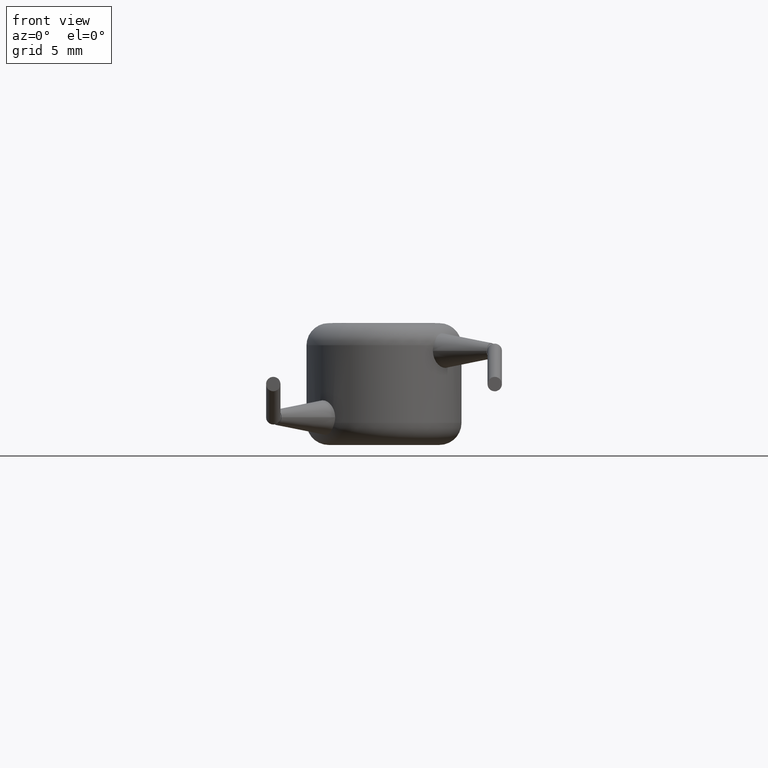
[diagram: clean part render]
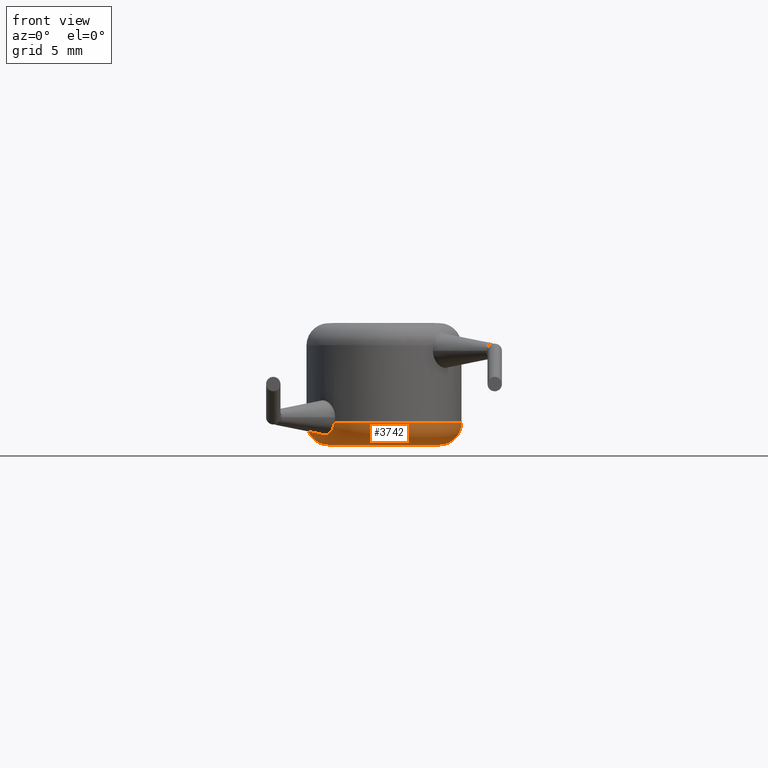
[diagram: same view with one face highlighted and labeled with its STEP entity id]
A machine part, front view. The second image highlights one B-rep face of the part: STEP entity #3742.
In plain terms, the highlighted toroidal blend (fillet) surface has major radius 2.5 mm and minor (blend) radius 1 mm.
Its self-contained STEP definition (entity closure, byte-faithful):
#98 = CARTESIAN_POINT ( 'NONE',  ( -2.329280552332801100, -2.564251733739662900, 0.7067769873697802300 ) ) ;
#163 = CARTESIAN_POINT ( 'NONE',  ( 0.0000000000000000000, 0.0000000000000000000, 1.000000000000000000 ) ) ;
#213 = DIRECTION ( 'NONE',  ( 1.224646799147353200E-016, 1.000000000000000000, -0.0000000000000000000 ) ) ;
#322 = CARTESIAN_POINT ( 'NONE',  ( -3.499999999999999600, 0.0000000000000000000, 1.000000000000000000 ) ) ;
#332 = AXIS2_PLACEMENT_3D ( 'NONE', #163, #3142, #2235 ) ;
#370 = ORIENTED_EDGE ( 'NONE', *, *, #2602, .T. ) ;
#391 = CARTESIAN_POINT ( 'NONE',  ( -2.529522651476402700, -2.184967392451355700, 0.4551389345926602500 ) ) ;
#430 = DIRECTION ( 'NONE',  ( 0.0000000000000000000, 0.0000000000000000000, 1.000000000000000000 ) ) ;
#448 = EDGE_CURVE ( 'NONE', #1702, #606, #4224, .T. ) ;
#497 = CARTESIAN_POINT ( 'NONE',  ( 0.0000000000000000000, 0.0000000000000000000, 1.000000000000000000 ) ) ;
#606 = VERTEX_POINT ( 'NONE', #322 ) ;
#747 = ORIENTED_EDGE ( 'NONE', *, *, #3980, .T. ) ;
#800 = CIRCLE ( 'NONE', #1379, 2.499999999999999600 ) ;
#803 = DIRECTION ( 'NONE',  ( 1.000000000000000000, 0.0000000000000000000, 0.0000000000000000000 ) ) ;
#809 = TOROIDAL_SURFACE ( 'NONE', #4085, 2.499999999999999600, 1.000000000000000000 ) ;
#858 = VERTEX_POINT ( 'NONE', #1653 ) ;
#1076 = CARTESIAN_POINT ( 'NONE',  ( -2.282743557588152500, -2.653716373794525700, 0.8438151435176475300 ) ) ;
#1081 = EDGE_LOOP ( 'NONE', ( #3138, #4007, #747, #2147, #370, #2613 ) ) ;
#1101 = CIRCLE ( 'NONE', #332, 3.499999999999999600 ) ;
#1201 = CARTESIAN_POINT ( 'NONE',  ( -2.239761204830260900, -2.689511060646023300, 0.9999999999999840100 ) ) ;
#1369 = DIRECTION ( 'NONE',  ( 0.0000000000000000000, -1.000000000000000000, 0.0000000000000000000 ) ) ;
#1379 = AXIS2_PLACEMENT_3D ( 'NONE', #2373, #1706, #2341 ) ;
#1400 = VERTEX_POINT ( 'NONE', #3944 ) ;
#1444 = CARTESIAN_POINT ( 'NONE',  ( -2.499999999999999600, 3.061616997868382600E-016, 1.000000000000000000 ) ) ;
#1653 = CARTESIAN_POINT ( 'NONE',  ( 3.499999999999999600, 4.286263797015736100E-016, 1.000000000000000000 ) ) ;
#1689 = CARTESIAN_POINT ( 'NONE',  ( -3.152061750976621600, -1.521350294320867900, 1.000000000000000000 ) ) ;
#1702 = VERTEX_POINT ( 'NONE', #3792 ) ;
#1706 = DIRECTION ( 'NONE',  ( -0.0000000000000000000, -0.0000000000000000000, -1.000000000000000000 ) ) ;
#1973 = VERTEX_POINT ( 'NONE', #1201 ) ;
#2126 = DIRECTION ( 'NONE',  ( 0.0000000000000000000, 0.0000000000000000000, 1.000000000000000000 ) ) ;
#2147 = ORIENTED_EDGE ( 'NONE', *, *, #3523, .F. ) ;
#2148 = DIRECTION ( 'NONE',  ( -1.000000000000000000, 1.224646799147353000E-016, 0.0000000000000000000 ) ) ;
#2235 = DIRECTION ( 'NONE',  ( 1.000000000000000000, 0.0000000000000000000, 0.0000000000000000000 ) ) ;
#2272 = CARTESIAN_POINT ( 'NONE',  ( 2.499999999999999600, 0.0000000000000000000, 1.000000000000000000 ) ) ;
#2341 = DIRECTION ( 'NONE',  ( 1.000000000000000000, 0.0000000000000000000, 0.0000000000000000000 ) ) ;
#2373 = CARTESIAN_POINT ( 'NONE',  ( 0.0000000000000000000, 0.0000000000000000000, 0.0000000000000000000 ) ) ;
#2384 = CARTESIAN_POINT ( 'NONE',  ( -2.451822862968962000, -2.328274254976495900, 0.5111319789753817600 ) ) ;
#2408 = FACE_OUTER_BOUND ( 'NONE', #1081, .T. ) ;
#2602 = EDGE_CURVE ( 'NONE', #1973, #3543, #3510, .T. ) ;
#2613 = ORIENTED_EDGE ( 'NONE', *, *, #3130, .F. ) ;
#2673 = CARTESIAN_POINT ( 'NONE',  ( -2.736208590735646600, -1.930080467947042200, 0.4684434699918355600 ) ) ;
#2690 = CARTESIAN_POINT ( 'NONE',  ( -2.680539105216925400, -1.991282723221933200, 0.4546865883881534600 ) ) ;
#2730 = CARTESIAN_POINT ( 'NONE',  ( -3.127740054559208000, -1.571742034667953800, 0.8437619845139030500 ) ) ;
#2736 = CIRCLE ( 'NONE', #3589, 3.499999999999999600 ) ;
#2827 = AXIS2_PLACEMENT_3D ( 'NONE', #1444, #213, #2148 ) ;
#2882 = CIRCLE ( 'NONE', #3842, 1.000000000000000000 ) ;
#3012 = CARTESIAN_POINT ( 'NONE',  ( 0.0000000000000000000, 0.0000000000000000000, 1.000000000000000000 ) ) ;
#3048 = CARTESIAN_POINT ( 'NONE',  ( -2.846907670657546700, -1.820381144946776200, 0.5209040891516507600 ) ) ;
#3049 = DIRECTION ( 'NONE',  ( 0.0000000000000000000, 0.0000000000000000000, -1.000000000000000000 ) ) ;
#3084 = CARTESIAN_POINT ( 'NONE',  ( -2.239761204830260900, -2.689511060646023300, 0.9999999999999840100 ) ) ;
#3130 = EDGE_CURVE ( 'NONE', #606, #3543, #2736, .T. ) ;
#3138 = ORIENTED_EDGE ( 'NONE', *, *, #448, .F. ) ;
#3142 = DIRECTION ( 'NONE',  ( 0.0000000000000000000, 0.0000000000000000000, 1.000000000000000000 ) ) ;
#3426 = CARTESIAN_POINT ( 'NONE',  ( -2.902079479457632800, -1.771231477639725800, 0.5595135742220531700 ) ) ;
#3510 = B_SPLINE_CURVE_WITH_KNOTS ( 'NONE', 3,
 ( #3084, #1076, #98, #2384, #391, #2690, #2673, #3048, #3426, #4037, #2730, #1689 ),
 .UNSPECIFIED., .F., .F.,
 ( 4, 2, 2, 2, 2, 4 ),
 ( 2.092810053519547600E-007, 0.0004905380041024490600, 0.0009808667271995461800, 0.001226031088748095500, 0.001471195450296645000, 0.001961524173393743900 ),
 .UNSPECIFIED. ) ;
#3523 = EDGE_CURVE ( 'NONE', #1973, #858, #1101, .T. ) ;
#3543 = VERTEX_POINT ( 'NONE', #3727 ) ;
#3589 = AXIS2_PLACEMENT_3D ( 'NONE', #3012, #430, #4059 ) ;
#3727 = CARTESIAN_POINT ( 'NONE',  ( -3.152061750976621600, -1.521350294320867900, 1.000000000000000000 ) ) ;
#3742 = ADVANCED_FACE ( 'NONE', ( #2408 ), #809, .T. ) ;
#3792 = CARTESIAN_POINT ( 'NONE',  ( -2.499999999999999600, 3.673940397442059400E-016, 0.0000000000000000000 ) ) ;
#3842 = AXIS2_PLACEMENT_3D ( 'NONE', #2272, #1369, #3049 ) ;
#3944 = CARTESIAN_POINT ( 'NONE',  ( 2.499999999999999600, 0.0000000000000000000, 0.0000000000000000000 ) ) ;
#3980 = EDGE_CURVE ( 'NONE', #1400, #858, #2882, .T. ) ;
#4007 = ORIENTED_EDGE ( 'NONE', *, *, #4010, .F. ) ;
#4010 = EDGE_CURVE ( 'NONE', #1400, #1702, #800, .T. ) ;
#4037 = CARTESIAN_POINT ( 'NONE',  ( -3.051270365717104300, -1.639388039294098700, 0.7055161944471949300 ) ) ;
#4059 = DIRECTION ( 'NONE',  ( 1.000000000000000000, 0.0000000000000000000, 0.0000000000000000000 ) ) ;
#4085 = AXIS2_PLACEMENT_3D ( 'NONE', #497, #2126, #803 ) ;
#4224 = CIRCLE ( 'NONE', #2827, 1.000000000000000000 ) ;